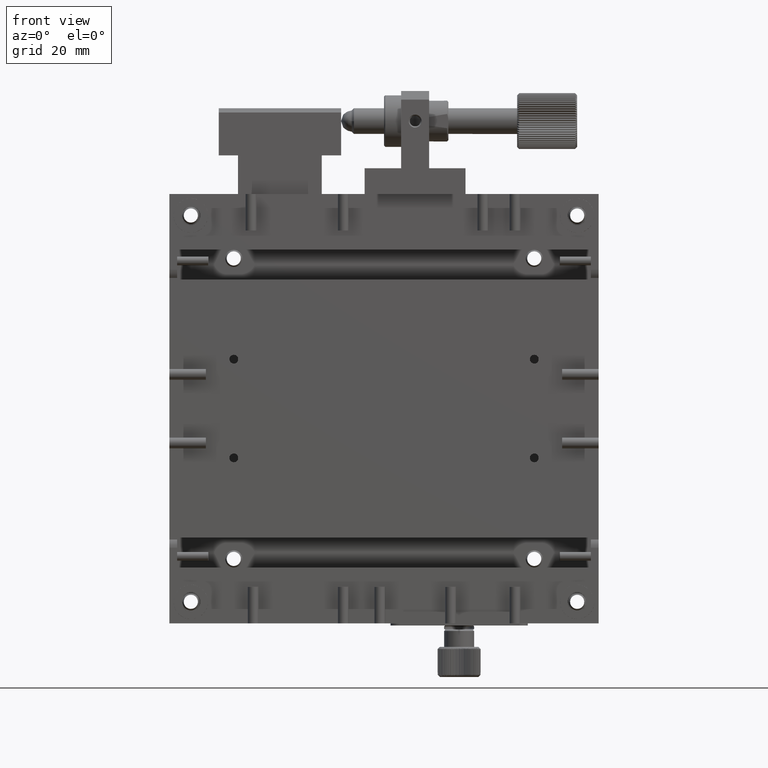
[diagram: clean part render]
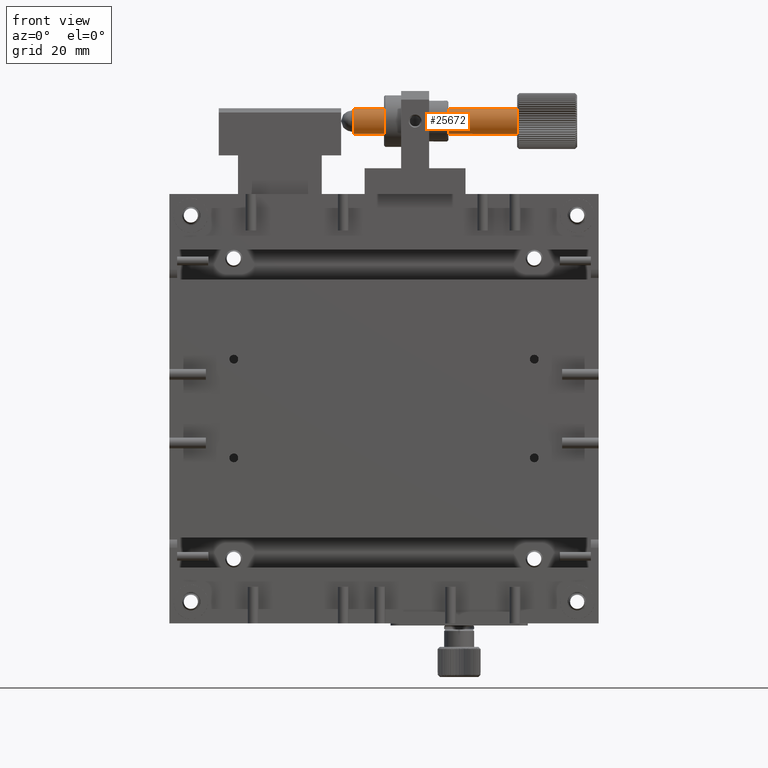
[diagram: same view with one face highlighted and labeled with its STEP entity id]
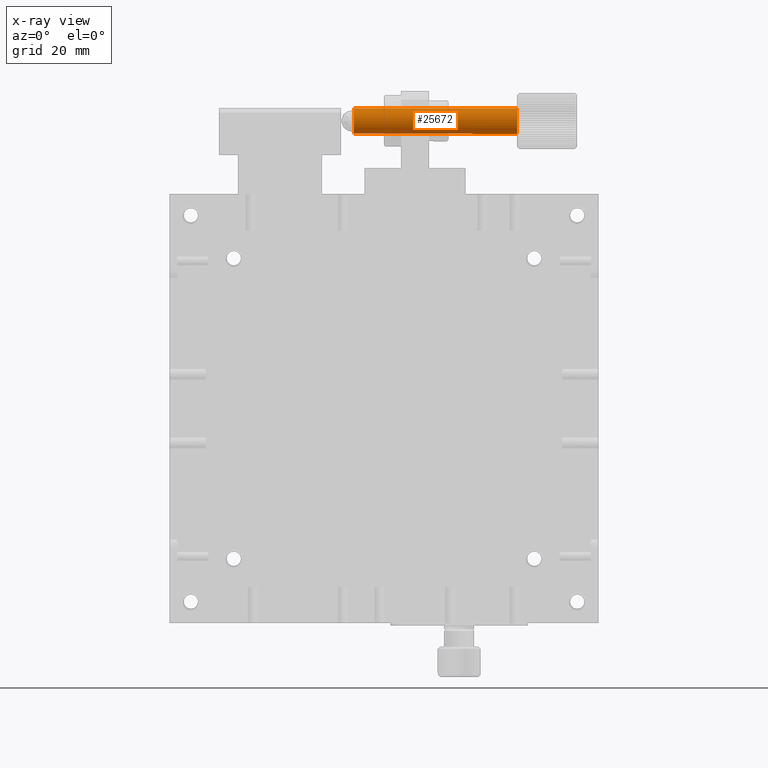
[diagram: x-ray of the same camera — body ghosted, the highlighted face saturated]
A machine part, front view. The second image highlights one B-rep face of the part: STEP entity #25672.
The next image is the same camera in x-ray: the body ghosted, the highlighted face saturated — about 0% of this face is hidden behind the body in this view.
In plain terms, the highlighted cylindrical surface (bore or boss wall) has radius 3 mm, axis along (-1, -0, -0).
Its self-contained STEP definition (entity closure, byte-faithful):
#437 = DIRECTION ( 'NONE',  ( 0.000000000000000000, 0.000000000000000000, 1.000000000000000000 ) ) ;
#1659 = DIRECTION ( 'NONE',  ( -1.000000000000000000, -0.000000000000000000, -0.000000000000000000 ) ) ;
#1812 = ORIENTED_EDGE ( 'NONE', *, *, #17528, .T. ) ;
#2624 = AXIS2_PLACEMENT_3D ( 'NONE', #15618, #8807, #437 ) ;
#2690 = DIRECTION ( 'NONE',  ( -1.000000000000000000, -0.000000000000000000, -0.000000000000000000 ) ) ;
#3186 = EDGE_CURVE ( 'NONE', #15862, #15862, #17124, .T. ) ;
#3225 = CARTESIAN_POINT ( 'NONE',  ( 6.801099353578980100, -3.990949976602919946, 70.00001250000002528 ) ) ;
#4770 = VERTEX_POINT ( 'NONE', #6755 ) ;
#4813 = EDGE_LOOP ( 'NONE', ( #20868 ) ) ;
#4951 = EDGE_LOOP ( 'NONE', ( #1812 ) ) ;
#6527 = FACE_OUTER_BOUND ( 'NONE', #4813, .T. ) ;
#6606 = CIRCLE ( 'NONE', #17037, 3.000000000000002665 ) ;
#6755 = CARTESIAN_POINT ( 'NONE',  ( 44.80109935357898365, -3.990949976602919946, 70.00001250000002528 ) ) ;
#6809 = CARTESIAN_POINT ( 'NONE',  ( 3.801099353578977436, -3.990949976602919946, 67.00001250000002528 ) ) ;
#7778 = DIRECTION ( 'NONE',  ( 0.000000000000000000, 0.000000000000000000, 1.000000000000000000 ) ) ;
#8807 = DIRECTION ( 'NONE',  ( 1.000000000000000000, 0.000000000000000000, 0.000000000000000000 ) ) ;
#10947 = DIRECTION ( 'NONE',  ( 0.000000000000000000, 0.000000000000000000, 1.000000000000000000 ) ) ;
#12331 = AXIS2_PLACEMENT_3D ( 'NONE', #6809, #2690, #10947 ) ;
#15331 = CYLINDRICAL_SURFACE ( 'NONE', #12331, 3.000000000000002665 ) ;
#15618 = CARTESIAN_POINT ( 'NONE',  ( 6.801099353578980100, -3.990949976602919946, 67.00001250000002528 ) ) ;
#15862 = VERTEX_POINT ( 'NONE', #3225 ) ;
#17037 = AXIS2_PLACEMENT_3D ( 'NONE', #21097, #1659, #7778 ) ;
#17124 = CIRCLE ( 'NONE', #2624, 3.000000000000002665 ) ;
#17528 = EDGE_CURVE ( 'NONE', #4770, #4770, #6606, .T. ) ;
#20868 = ORIENTED_EDGE ( 'NONE', *, *, #3186, .T. ) ;
#21097 = CARTESIAN_POINT ( 'NONE',  ( 44.80109935357898365, -3.990949976602919946, 67.00001250000002528 ) ) ;
#22114 = FACE_OUTER_BOUND ( 'NONE', #4951, .T. ) ;
#25672 = ADVANCED_FACE ( 'NONE', ( #6527, #22114 ), #15331, .T. ) ;